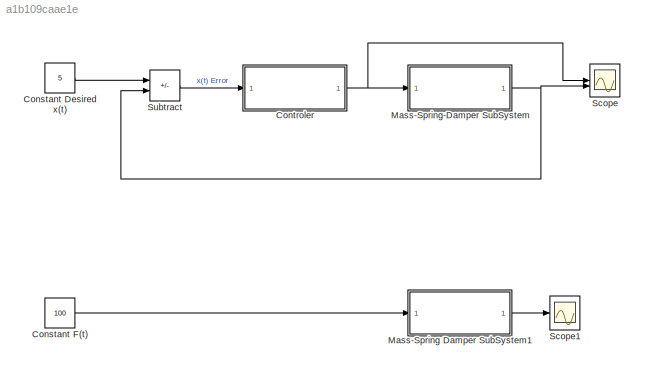
MODEL slx_a1b109caae1e
KIND model
CONFIG AbsTol = auto
CONFIG EnableMultiTasking = off
CONFIG FixedStep = auto
CONFIG MaxStep = auto
CONFIG MinStep = auto
CONFIG RelTol = 1e-3
CONFIG SampleTimeConstraint = Unconstrained
CONFIG SolverName = VariableStepAuto
CONFIG StartTime = 0.0
CONFIG StopTime = 10.0
WORKSPACE source: mxarray member
WORKSPACE Kd: Simulink.Parameter (value not decoded)
WORKSPACE Kp: Simulink.Parameter (value not decoded)
WORKSPACE b: Simulink.Parameter (value not decoded)
WORKSPACE k: Simulink.Parameter (value not decoded)
WORKSPACE m: Simulink.Parameter (value not decoded)
BLOCK [Constant] Constant Desired x(t)
  Value = 5
BLOCK [Constant] Constant F(t)
  Value = 100
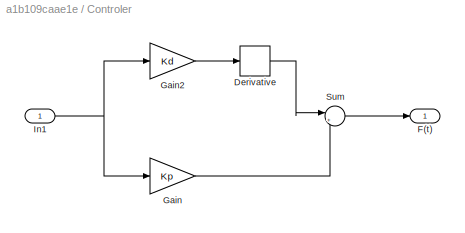
BLOCK [SubSystem] Controler
BLOCK [Derivative] Controler/Derivative
BLOCK [Outport] Controler/F(t)
BLOCK [Gain] Controler/Gain
  Gain = Kp
BLOCK [Gain] Controler/Gain2
  Gain = Kd
BLOCK [Inport] Controler/In1
BLOCK [Sum] Controler/Sum
  Inputs = |++
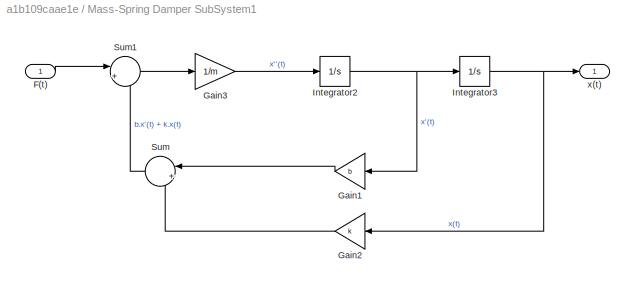
BLOCK [SubSystem] Mass-Spring Damper SubSystem1
BLOCK [Inport] Mass-Spring Damper SubSystem1/F(t)
BLOCK [Gain] Mass-Spring Damper SubSystem1/Gain1
  Gain = b
BLOCK [Gain] Mass-Spring Damper SubSystem1/Gain2
  Gain = k
BLOCK [Gain] Mass-Spring Damper SubSystem1/Gain3
  Gain = 1/m
BLOCK [Integrator] Mass-Spring Damper SubSystem1/Integrator2
BLOCK [Integrator] Mass-Spring Damper SubSystem1/Integrator3
BLOCK [Sum] Mass-Spring Damper SubSystem1/Sum
  Inputs = |++
BLOCK [Sum] Mass-Spring Damper SubSystem1/Sum1
  Inputs = |+-
BLOCK [Outport] Mass-Spring Damper SubSystem1/x(t)
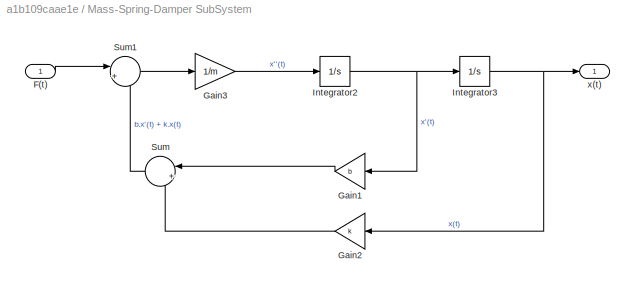
BLOCK [SubSystem] Mass-Spring-Damper SubSystem
BLOCK [Inport] Mass-Spring-Damper SubSystem/F(t)
BLOCK [Gain] Mass-Spring-Damper SubSystem/Gain1
  Gain = b
BLOCK [Gain] Mass-Spring-Damper SubSystem/Gain2
  Gain = k
BLOCK [Gain] Mass-Spring-Damper SubSystem/Gain3
  Gain = 1/m
BLOCK [Integrator] Mass-Spring-Damper SubSystem/Integrator2
BLOCK [Integrator] Mass-Spring-Damper SubSystem/Integrator3
BLOCK [Sum] Mass-Spring-Damper SubSystem/Sum
  Inputs = |++
BLOCK [Sum] Mass-Spring-Damper SubSystem/Sum1
  Inputs = |+-
BLOCK [Outport] Mass-Spring-Damper SubSystem/x(t)
BLOCK [Scope] Scope
  Floating = off
  NumInputPorts = 2
  ScopeSpecificationString = Simulink.scopes.TimeScopeBlockCfg('CurrentConfiguration', extmgr.ConfigurationSet(extmgr.Configuration('Core','General UI',true),extmgr.Configuration('Core','Source UI',true),extmgr.Configuration('Sources','WiredSimulink',true),extmgr.Configuration('Visuals','Time Domain',true,'SerializedDisplays',{struct('MinYLimReal','-1.24333','MaxYLimReal','0.13815','YLabelReal','','MinYLimMag','0.00000','MaxY...<+1383ch>
BLOCK [Scope] Scope1
  Floating = off
  NumInputPorts = 1
  ScopeSpecificationString = Simulink.scopes.TimeScopeBlockCfg('CurrentConfiguration', extmgr.ConfigurationSet(extmgr.Configuration('Core','General UI',true),extmgr.Configuration('Core','Source UI',true),extmgr.Configuration('Sources','WiredSimulink',true,'DataLoggingVariableName','ScopeData1'),extmgr.Configuration('Visuals','Time Domain',true,'SerializedDisplays',{struct('MinYLimReal','-26334048363597156448148928755400704.00...<+1793ch>
BLOCK [Sum] Subtract
  IconShape = rectangular
  Inputs = +-
LINE Constant Desired x(t):1 -> Subtract:1
LINE Constant F(t):1 -> Mass-Spring Damper SubSystem1:1
LINE Controler/Derivative:1 -> Controler/Sum:1
LINE Controler/Gain2:1 -> Controler/Derivative:1
LINE Controler/Gain:1 -> Controler/Sum:2
NET Controler/In1:1 -> Controler/Gain2:1, Controler/Gain:1
LINE Controler/Sum:1 -> Controler/F(t):1
NET Controler:1 -> Mass-Spring-Damper SubSystem:1, Scope:1
LINE Mass-Spring Damper SubSystem1/F(t):1 -> Mass-Spring Damper SubSystem1/Sum1:1
LINE Mass-Spring Damper SubSystem1/Gain1:1 -> Mass-Spring Damper SubSystem1/Sum:1
LINE Mass-Spring Damper SubSystem1/Gain2:1 -> Mass-Spring Damper SubSystem1/Sum:2
LINE Mass-Spring Damper SubSystem1/Gain3:1 -> Mass-Spring Damper SubSystem1/Integrator2:1
NET Mass-Spring Damper SubSystem1/Integrator2:1 -> Mass-Spring Damper SubSystem1/Gain1:1, Mass-Spring Damper SubSystem1/Integrator3:1
NET Mass-Spring Damper SubSystem1/Integrator3:1 -> Mass-Spring Damper SubSystem1/Gain2:1, Mass-Spring Damper SubSystem1/x(t):1
LINE Mass-Spring Damper SubSystem1/Sum1:1 -> Mass-Spring Damper SubSystem1/Gain3:1
LINE Mass-Spring Damper SubSystem1/Sum:1 -> Mass-Spring Damper SubSystem1/Sum1:2
LINE Mass-Spring Damper SubSystem1:1 -> Scope1:1
LINE Mass-Spring-Damper SubSystem/F(t):1 -> Mass-Spring-Damper SubSystem/Sum1:1
LINE Mass-Spring-Damper SubSystem/Gain1:1 -> Mass-Spring-Damper SubSystem/Sum:1
LINE Mass-Spring-Damper SubSystem/Gain2:1 -> Mass-Spring-Damper SubSystem/Sum:2
LINE Mass-Spring-Damper SubSystem/Gain3:1 -> Mass-Spring-Damper SubSystem/Integrator2:1
NET Mass-Spring-Damper SubSystem/Integrator2:1 -> Mass-Spring-Damper SubSystem/Gain1:1, Mass-Spring-Damper SubSystem/Integrator3:1
NET Mass-Spring-Damper SubSystem/Integrator3:1 -> Mass-Spring-Damper SubSystem/Gain2:1, Mass-Spring-Damper SubSystem/x(t):1
LINE Mass-Spring-Damper SubSystem/Sum1:1 -> Mass-Spring-Damper SubSystem/Gain3:1
LINE Mass-Spring-Damper SubSystem/Sum:1 -> Mass-Spring-Damper SubSystem/Sum1:2
NET Mass-Spring-Damper SubSystem:1 -> Scope:2, Subtract:2
LINE Subtract:1 -> Controler:1
note: NET lines group one-source signal fan-out (src -> all destinations, sorted); 1:1 wires keep LINE
